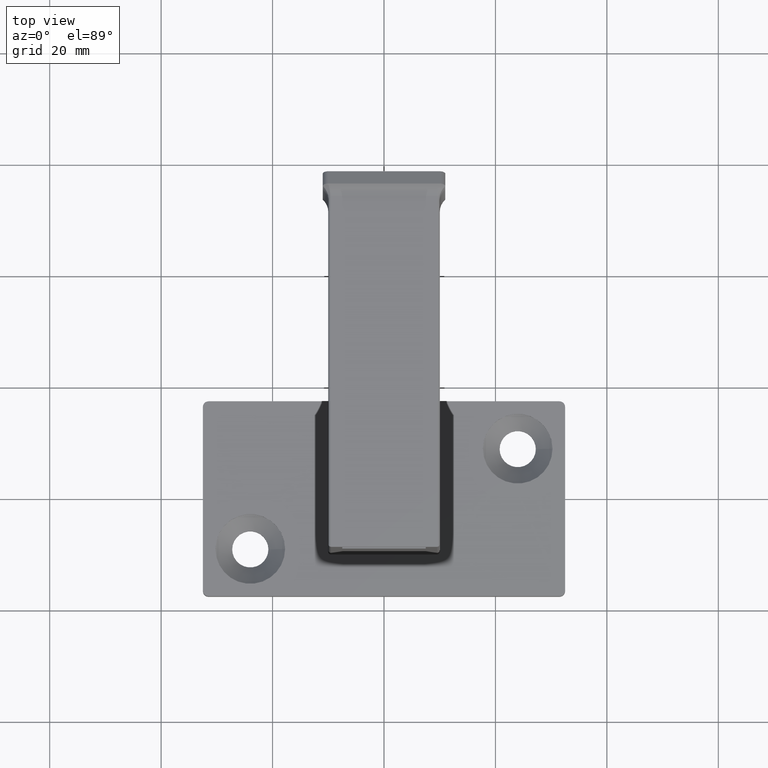
[diagram: clean part render]
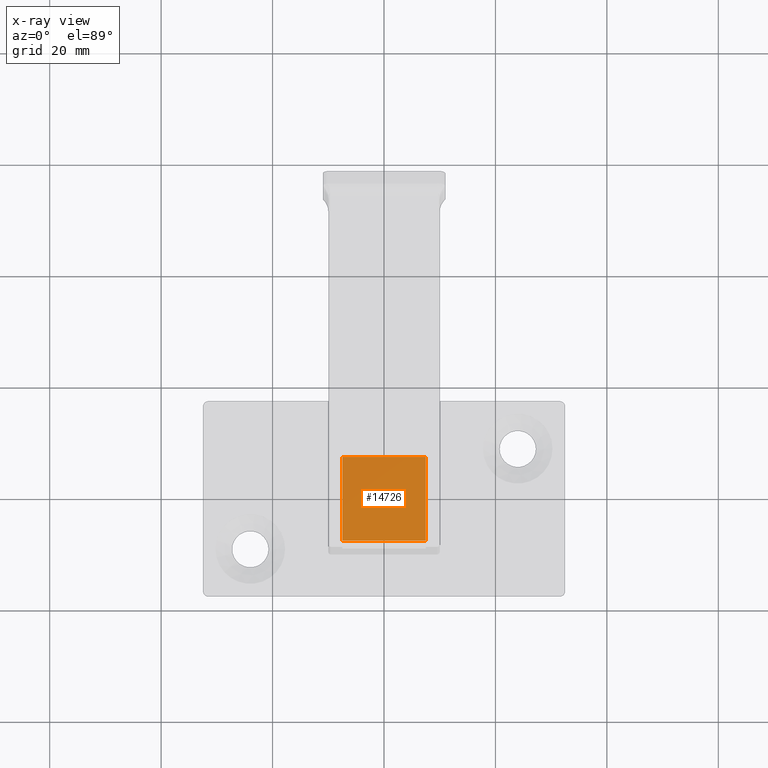
[diagram: x-ray — body ghosted, one internal face saturated and labeled with its STEP entity id]
A machine part, top view, then the same camera in x-ray: the body is ghosted and one INTERNAL B-rep face — a face not visible from any outside direction — is saturated and labeled: STEP entity #14726.
In plain terms, the highlighted planar face has unit normal (0, 0, -1).
Its self-contained STEP definition (entity closure, byte-faithful):
#170 = EDGE_LOOP ( 'NONE', ( #14319, #10444, #13964, #2645 ) ) ;
#462 = EDGE_CURVE ( 'NONE', #9440, #9063, #4197, .T. ) ;
#562 = DIRECTION ( 'NONE',  ( -1.000000000000000000, 0.000000000000000000, -0.000000000000000000 ) ) ;
#662 = LINE ( 'NONE', #11508, #7215 ) ;
#784 = EDGE_CURVE ( 'NONE', #1004, #1500, #5790, .T. ) ;
#1004 = VERTEX_POINT ( 'NONE', #3909 ) ;
#1025 = CARTESIAN_POINT ( 'NONE',  ( -7.499999999999999112, 0.000000000000000000, 6.000000000000000000 ) ) ;
#1151 = CARTESIAN_POINT ( 'NONE',  ( 8.673617379884037444E-16, 7.500000000000000000, 6.000000000000000000 ) ) ;
#1500 = VERTEX_POINT ( 'NONE', #7664 ) ;
#2571 = FACE_OUTER_BOUND ( 'NONE', #170, .T. ) ;
#2645 = ORIENTED_EDGE ( 'NONE', *, *, #3504, .F. ) ;
#2885 = PLANE ( 'NONE',  #3948 ) ;
#3411 = DIRECTION ( 'NONE',  ( -1.000000000000000000, 0.000000000000000000, 0.000000000000000000 ) ) ;
#3504 = EDGE_CURVE ( 'NONE', #1500, #9440, #662, .T. ) ;
#3909 = CARTESIAN_POINT ( 'NONE',  ( -7.499999999999999112, 7.500000000000001776, 6.000000000000000000 ) ) ;
#3948 = AXIS2_PLACEMENT_3D ( 'NONE', #13230, #7738, #562 ) ;
#4179 = VECTOR ( 'NONE', #9168, 1000.000000000000000 ) ;
#4197 = LINE ( 'NONE', #10312, #13553 ) ;
#5244 = CARTESIAN_POINT ( 'NONE',  ( 7.499999999999999112, -7.499999999999997335, 6.000000000000032863 ) ) ;
#5698 = DIRECTION ( 'NONE',  ( 0.000000000000000000, 1.000000000000000000, 0.000000000000000000 ) ) ;
#5790 = LINE ( 'NONE', #1151, #4179 ) ;
#7215 = VECTOR ( 'NONE', #8120, 1000.000000000000000 ) ;
#7664 = CARTESIAN_POINT ( 'NONE',  ( 7.499999999999999112, 7.500000000000000000, 6.000000000000000000 ) ) ;
#7673 = LINE ( 'NONE', #1025, #8032 ) ;
#7738 = DIRECTION ( 'NONE',  ( 0.000000000000000000, 0.000000000000000000, -1.000000000000000000 ) ) ;
#8032 = VECTOR ( 'NONE', #5698, 1000.000000000000000 ) ;
#8120 = DIRECTION ( 'NONE',  ( 0.000000000000000000, -1.000000000000000000, 0.000000000000000000 ) ) ;
#9063 = VERTEX_POINT ( 'NONE', #13235 ) ;
#9168 = DIRECTION ( 'NONE',  ( 1.000000000000000000, -1.156482317317871725E-16, 0.000000000000000000 ) ) ;
#9440 = VERTEX_POINT ( 'NONE', #5244 ) ;
#10312 = CARTESIAN_POINT ( 'NONE',  ( 0.000000000000000000, -7.499999999999997335, 6.000000000000000000 ) ) ;
#10444 = ORIENTED_EDGE ( 'NONE', *, *, #13027, .F. ) ;
#11508 = CARTESIAN_POINT ( 'NONE',  ( 7.499999999999999112, 0.000000000000000000, 6.000000000000000000 ) ) ;
#13027 = EDGE_CURVE ( 'NONE', #9063, #1004, #7673, .T. ) ;
#13230 = CARTESIAN_POINT ( 'NONE',  ( 0.000000000000000000, 0.000000000000000000, 6.000000000000000000 ) ) ;
#13235 = CARTESIAN_POINT ( 'NONE',  ( -7.499999999999999112, -7.499999999999997335, 6.000000000000000000 ) ) ;
#13553 = VECTOR ( 'NONE', #3411, 1000.000000000000000 ) ;
#13964 = ORIENTED_EDGE ( 'NONE', *, *, #462, .F. ) ;
#14319 = ORIENTED_EDGE ( 'NONE', *, *, #784, .F. ) ;
#14726 = ADVANCED_FACE ( 'NONE', ( #2571 ), #2885, .F. ) ;